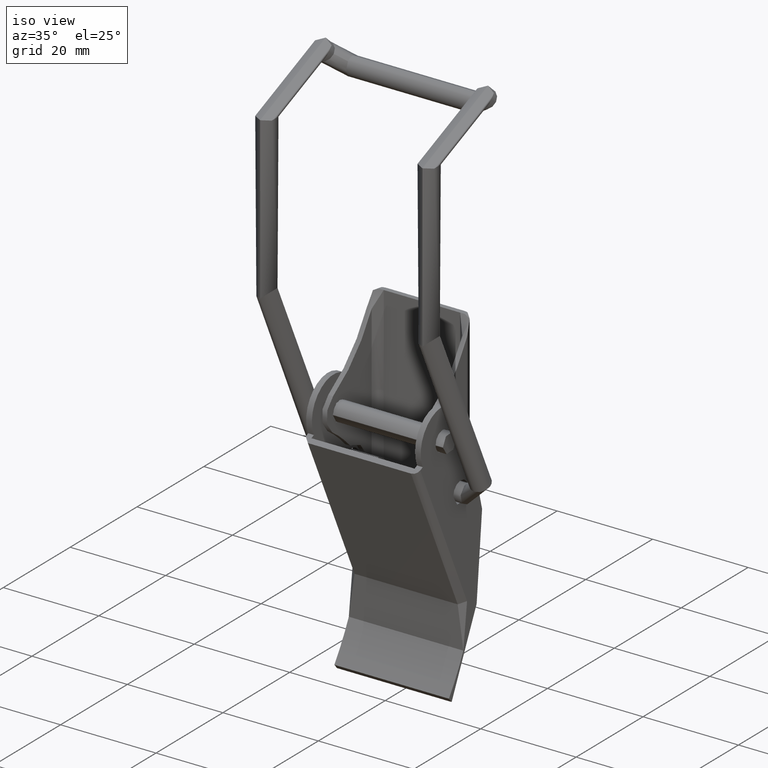
[diagram: clean part render]
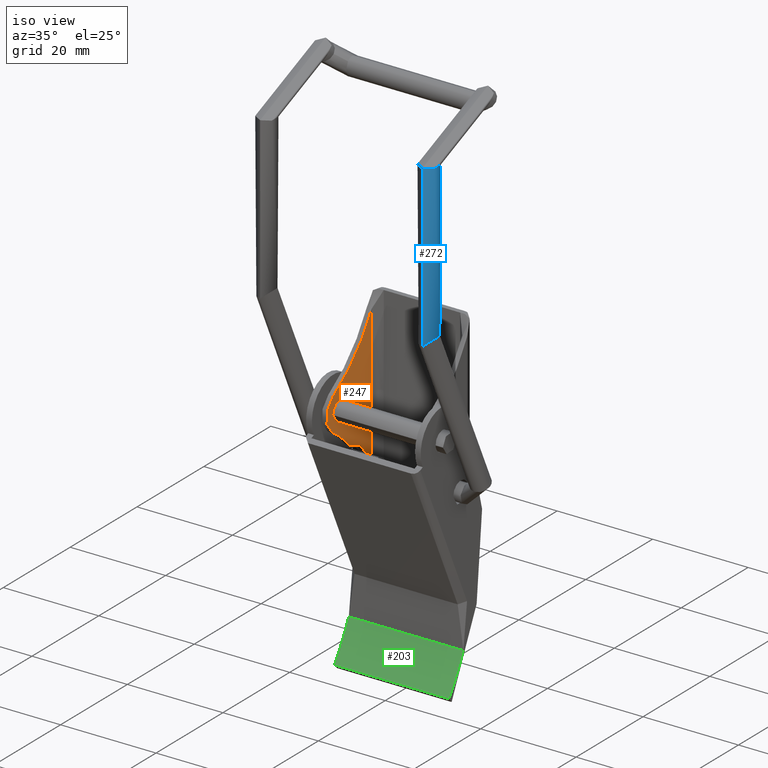
[diagram: same view with three faces highlighted in distinct colors, each labeled with its STEP entity id]
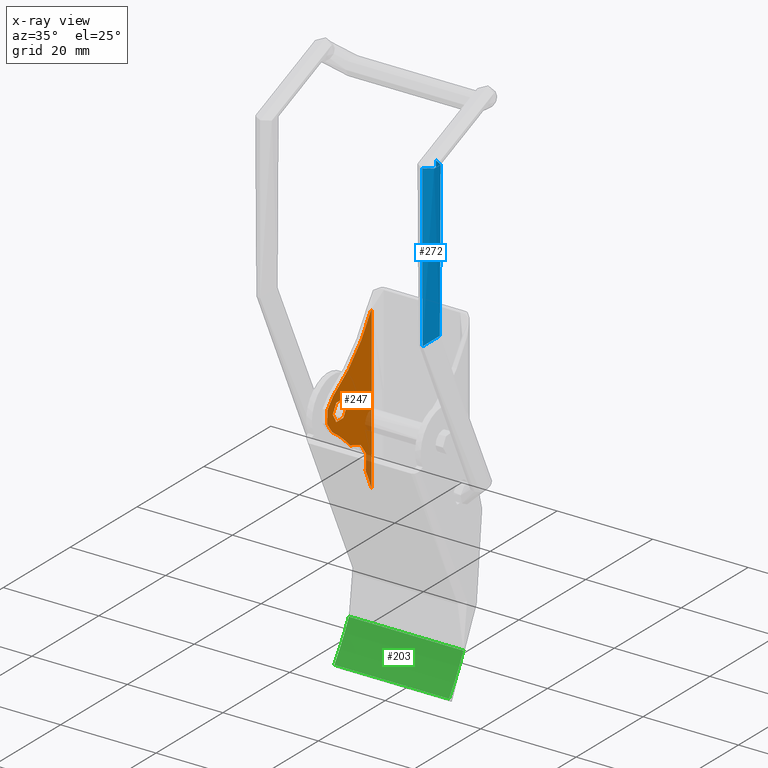
[diagram: x-ray of the same camera — body ghosted, the three highlighted faces saturated]
A machine part, iso view with three faces highlighted in distinct colors.
The next image is the same camera in x-ray (body ghosted, the three faces saturated) — at least one of them is partly hidden behind the body in this view.
Their STEP definitions:

[orange] entity #247 — the highlighted planar face has unit normal (-1, 0, 0).
#247=ADVANCED_FACE('',(#910,#911),#909,.F.);
#909=PLANE('',#1768);
#910=FACE_OUTER_BOUND('',#1769,.T.);
#911=FACE_BOUND('',#1770,.T.);
#1765=CARTESIAN_POINT('',(-1.90129845101E+01,1.00000000000E+00,9.25268388653E+00));
#1766=DIRECTION('',(0.00000000000E+00,-1.00000000000E+00,0.00000000000E+00));
#1767=DIRECTION('',(0.00000000000E+00,0.00000000000E+00,-1.00000000000E+00));
#1768=AXIS2_PLACEMENT_3D('',#1765,#1766,#1767);
#1769=EDGE_LOOP('',(#2554,#2555,#2556,#2557,#2558,#2559,#2560,#2561,#2562));
#1770=EDGE_LOOP('',(#2563,#2564));
#2554=ORIENTED_EDGE('',*,*,#2943,.T.);
#2555=ORIENTED_EDGE('',*,*,#2954,.T.);
#2556=ORIENTED_EDGE('',*,*,#2964,.F.);
#2557=ORIENTED_EDGE('',*,*,#2966,.T.);
#2558=ORIENTED_EDGE('',*,*,#2978,.F.);
#2559=ORIENTED_EDGE('',*,*,#2975,.T.);
#2560=ORIENTED_EDGE('',*,*,#2932,.F.);
#2561=ORIENTED_EDGE('',*,*,#2894,.T.);
#2562=ORIENTED_EDGE('',*,*,#2952,.F.);
#2563=ORIENTED_EDGE('',*,*,#2980,.F.);
#2564=ORIENTED_EDGE('',*,*,#2981,.F.);
#2894=EDGE_CURVE('',#3763,#3756,#3764,.T.);
#2932=EDGE_CURVE('',#3763,#4023,#4024,.T.);
#2943=EDGE_CURVE('',#4097,#4090,#4098,.T.);
#2952=EDGE_CURVE('',#4097,#3756,#4153,.T.);
#2954=EDGE_CURVE('',#4090,#4165,#4166,.T.);
#2964=EDGE_CURVE('',#4224,#4165,#4232,.T.);
#2966=EDGE_CURVE('',#4224,#4244,#4245,.T.);
#2975=EDGE_CURVE('',#4303,#4023,#4304,.T.);
#2978=EDGE_CURVE('',#4303,#4244,#4323,.T.);
#2980=EDGE_CURVE('',#4335,#4336,#4337,.T.);
#2981=EDGE_CURVE('',#4336,#4335,#4343,.T.);
#3756=VERTEX_POINT('',#5573);
#3763=VERTEX_POINT('',#5581);
#3764=LINE('',#5582,#5583);
#4023=VERTEX_POINT('',#5786);
#4024=CIRCLE('',#5790,3.00000000000E+01);
#4090=VERTEX_POINT('',#5857);
#4097=VERTEX_POINT('',#5861);
#4098=CIRCLE('',#5865,3.00000000000E+01);
#4153=LINE('',#5925,#5926);
#4165=VERTEX_POINT('',#5931);
#4166=CIRCLE('',#5935,4.00000000000E+00);
#4224=VERTEX_POINT('',#5968);
#4232=CIRCLE('',#5976,3.00000000000E+01);
#4244=VERTEX_POINT('',#5981);
#4245=CIRCLE('',#5985,1.00000000000E+00);
#4303=VERTEX_POINT('',#6021);
#4304=CIRCLE('',#6025,1.00000000000E+00);
#4323=CIRCLE('',#6037,4.50000000000E+00);
#4335=VERTEX_POINT('',#6042);
#4336=VERTEX_POINT('',#6043);
#4337=CIRCLE('',#6047,2.10000000000E+00);
#4343=CIRCLE('',#6051,2.10000000000E+00);
#5573=CARTESIAN_POINT('',(0.00000000000E+00,1.00000000000E+00,-9.50000000000E+00));
#5581=CARTESIAN_POINT('',(1.86312859580E+01,1.00000000000E+00,-9.50000000000E+00));
#5582=CARTESIAN_POINT('',(1.86312859580E+01,1.00000000000E+00,-9.50000000000E+00));
#5583=VECTOR('',#5584,1.86312859580E+01);
#5584=DIRECTION('',(-1.00000000000E+00,0.00000000000E+00,0.00000000000E+00));
#5786=CARTESIAN_POINT('',(1.46696021857E+01,1.00000000000E+00,-7.83354885156E+00));
#5787=CARTESIAN_POINT('',(2.82526303348E+01,1.00000000000E+00,1.89153080642E+01));
#5788=DIRECTION('',(-0.00000000000E+00,1.00000000000E+00,0.00000000000E+00));
#5789=DIRECTION('',(-0.00000000000E+00,-0.00000000000E+00,1.00000000000E+00));
#5790=AXIS2_PLACEMENT_3D('',#5787,#5788,#5789);
#5857=CARTESIAN_POINT('',(-3.45339496623E+00,1.00000000000E+00,2.01843087750E+00));
#5861=CARTESIAN_POINT('',(-1.55907781039E+01,1.00000000000E+00,-9.50000000000E+00));
#5862=CARTESIAN_POINT('',(-2.93538572129E+01,1.00000000000E+00,1.71566624587E+01));
#5863=DIRECTION('',(0.00000000000E+00,-1.00000000000E+00,0.00000000000E+00));
#5864=DIRECTION('',(-0.00000000000E+00,-0.00000000000E+00,-1.00000000000E+00));
#5865=AXIS2_PLACEMENT_3D('',#5862,#5863,#5864);
#5925=CARTESIAN_POINT('',(-1.55907781039E+01,1.00000000000E+00,-9.50000000000E+00));
#5926=VECTOR('',#5927,1.55907781039E+01);
#5927=DIRECTION('',(1.00000000000E+00,0.00000000000E+00,0.00000000000E+00));
#5931=CARTESIAN_POINT('',(3.32383886292E+00,1.00000000000E+00,2.22533036049E+00));
#5932=CARTESIAN_POINT('',(0.00000000000E+00,1.00000000000E+00,-2.84217094304E-14));
#5933=DIRECTION('',(0.00000000000E+00,1.00000000000E+00,-0.00000000000E+00));
#5934=DIRECTION('',(8.30959715731E-01,0.00000000000E+00,5.56332590123E-01));
#5935=AXIS2_PLACEMENT_3D('',#5932,#5933,#5934);
#5968=CARTESIAN_POINT('',(7.68768261945E+00,1.00000000000E+00,-2.92691996922E+00));
#5973=CARTESIAN_POINT('',(2.82526303348E+01,1.00000000000E+00,1.89153080642E+01));
#5974=DIRECTION('',(-0.00000000000E+00,1.00000000000E+00,0.00000000000E+00));
#5975=DIRECTION('',(-0.00000000000E+00,-0.00000000000E+00,1.00000000000E+00));
#5976=AXIS2_PLACEMENT_3D('',#5973,#5974,#5975);
#5981=CARTESIAN_POINT('',(8.00178720549E+00,1.00000000000E+00,-3.62681346664E+00));
#5982=CARTESIAN_POINT('',(7.00218436227E+00,1.00000000000E+00,-3.65499423700E+00));
#5983=DIRECTION('',(-0.00000000000E+00,1.00000000000E+00,0.00000000000E+00));
#5984=DIRECTION('',(-0.00000000000E+00,-0.00000000000E+00,1.00000000000E+00));
#5985=AXIS2_PLACEMENT_3D('',#5982,#5983,#5984);
#6021=CARTESIAN_POINT('',(1.39046828387E+01,1.00000000000E+00,-7.77514515807E+00));
#6022=CARTESIAN_POINT('',(1.42168345807E+01,1.00000000000E+00,-8.72517741542E+00));
#6023=DIRECTION('',(0.00000000000E+00,1.00000000000E+00,-0.00000000000E+00));
#6024=DIRECTION('',(4.52767604973E-01,0.00000000000E+00,8.91628563858E-01));
#6025=AXIS2_PLACEMENT_3D('',#6022,#6023,#6024);
#6034=CARTESIAN_POINT('',(1.25000000000E+01,1.00000000000E+00,-3.50000000000E+00));
#6035=DIRECTION('',(-0.00000000000E+00,1.00000000000E+00,0.00000000000E+00));
#6036=DIRECTION('',(-0.00000000000E+00,-0.00000000000E+00,1.00000000000E+00));
#6037=AXIS2_PLACEMENT_3D('',#6034,#6035,#6036);
#6042=CARTESIAN_POINT('',(5.18104078158E-16,1.00000000000E+00,2.10000000000E+00));
#6043=CARTESIAN_POINT('',(0.00000000000E+00,1.00000000000E+00,-2.10000000000E+00));
#6044=CARTESIAN_POINT('',(0.00000000000E+00,1.00000000000E+00,-2.84217094304E-14));
#6045=DIRECTION('',(0.00000000000E+00,1.00000000000E+00,0.00000000000E+00));
#6046=DIRECTION('',(-1.22460635382E-16,0.00000000000E+00,-1.00000000000E+00));
#6047=AXIS2_PLACEMENT_3D('',#6044,#6045,#6046);
#6048=CARTESIAN_POINT('',(0.00000000000E+00,1.00000000000E+00,-2.84217094304E-14));
#6049=DIRECTION('',(0.00000000000E+00,1.00000000000E+00,0.00000000000E+00));
#6050=DIRECTION('',(-1.22460635382E-16,0.00000000000E+00,-1.00000000000E+00));
#6051=AXIS2_PLACEMENT_3D('',#6048,#6049,#6050);

[blue] entity #272 — the highlighted cylindrical surface (edge-blend (fillet) strip) has radius 2 mm, axis along (0, 0.0011, -1).
#272=ADVANCED_FACE('',(#1163),#1162,.T.);
#1162=CYLINDRICAL_SURFACE('',#1970,2.00000000000E+00);
#1163=FACE_OUTER_BOUND('',#1971,.T.);
#1967=CARTESIAN_POINT('',(1.70000000000E+01,-1.99434116207E+01,-1.42177094166E+05));
#1968=DIRECTION('',(-0.00000000000E+00,3.98013334088E-07,-1.00000000000E+00));
#1969=DIRECTION('',(3.90055799479E-12,-1.00000000000E+00,-3.98013334088E-07));
#1970=AXIS2_PLACEMENT_3D('',#1967,#1968,#1969);
#1971=EDGE_LOOP('',(#2701,#2702,#2703,#2704,#2705));
#2701=ORIENTED_EDGE('',*,*,#3039,.T.);
#2702=ORIENTED_EDGE('',*,*,#3036,.T.);
#2703=ORIENTED_EDGE('',*,*,#3031,.F.);
#2704=ORIENTED_EDGE('',*,*,#3035,.F.);
#2705=ORIENTED_EDGE('',*,*,#3038,.F.);
#3031=EDGE_CURVE('',#4670,#4677,#4678,.T.);
#3035=EDGE_CURVE('',#4697,#4670,#4704,.T.);
#3036=EDGE_CURVE('',#4710,#4677,#4711,.T.);
#3038=EDGE_CURVE('',#4717,#4697,#4724,.T.);
#3039=EDGE_CURVE('',#4717,#4710,#4730,.T.);
#4670=VERTEX_POINT('',#6256);
#4677=VERTEX_POINT('',#6259);
#4678=(BOUNDED_CURVE() B_SPLINE_CURVE(2,(#6260,#6261,#6262,#6263,#6264),.UNSPECIFIED.,.F.,.F.) B_SPLINE_CURVE_WITH_KNOTS((3,2,3),(-2.60582204435E+00,-1.57079632679E+00,-0.00000000000E+00),.UNSPECIFIED.) CURVE() GEOMETRIC_REPRESENTATION_ITEM() RATIONAL_B_SPLINE_CURVE((8.68347356092E-01,8.07007433873E-01,1.00000000000E+00,7.07106781187E-01,1.00000000000E+00)) REPRESENTATION_ITEM('') );
#4697=VERTEX_POINT('',#6271);
#4704=(BOUNDED_CURVE() B_SPLINE_CURVE(2,(#6277,#6278,#6279),.UNSPECIFIED.,.F.,.F.) B_SPLINE_CURVE_WITH_KNOTS((3,3),(-3.13733139102E+00,-2.60582204435E+00),.UNSPECIFIED.) CURVE() GEOMETRIC_REPRESENTATION_ITEM() RATIONAL_B_SPLINE_CURVE((1.00000000000E+00,9.00099347313E-01,8.68347356092E-01)) REPRESENTATION_ITEM('') );
#4710=VERTEX_POINT('',#6280);
#4711=(BOUNDED_CURVE() B_SPLINE_CURVE(1,(#6281,#6282),.UNSPECIFIED.,.F.,.F.) B_SPLINE_CURVE_WITH_KNOTS((2,2),(8.33333335810E-02,9.16666666255E-01),.UNSPECIFIED.) CURVE() GEOMETRIC_REPRESENTATION_ITEM() RATIONAL_B_SPLINE_CURVE((1.00000000000E+00,1.00000000000E+00)) REPRESENTATION_ITEM('') );
#4717=VERTEX_POINT('',#6283);
#4724=(BOUNDED_CURVE() B_SPLINE_CURVE(1,(#6288,#6289),.UNSPECIFIED.,.F.,.F.) B_SPLINE_CURVE_WITH_KNOTS((2,2),(8.33333333339E-02,8.94894728720E-01),.UNSPECIFIED.) CURVE() GEOMETRIC_REPRESENTATION_ITEM() RATIONAL_B_SPLINE_CURVE((7.50000000000E-01,7.50000000000E-01)) REPRESENTATION_ITEM('') );
#4730=CIRCLE('',#6293,2.00000000000E+00);
#6256=CARTESIAN_POINT('',(1.80000022169E+01,-1.82679361986E+01,-3.58625025752E+01));
#6259=CARTESIAN_POINT('',(1.70000000000E+01,-2.19999853989E+01,-3.66850221530E+01));
#6260=CARTESIAN_POINT('',(1.80000022169E+01,-1.82679361986E+01,-3.58625025752E+01));
#6261=CARTESIAN_POINT('',(1.90000000000E+01,-1.88452868438E+01,-3.59897469344E+01));
#6262=CARTESIAN_POINT('',(1.90000000000E+01,-1.99999855743E+01,-3.62442350886E+01));
#6263=CARTESIAN_POINT('',(1.90000000000E+01,-2.19999853989E+01,-3.66850221530E+01));
#6264=CARTESIAN_POINT('',(1.70000000000E+01,-2.19999853989E+01,-3.66850221530E+01));
#6271=CARTESIAN_POINT('',(1.70000000000E+01,-1.79999857498E+01,-3.58033436498E+01));
#6277=CARTESIAN_POINT('',(1.70000000000E+01,-1.79999857498E+01,-3.58034480241E+01));
#6278=CARTESIAN_POINT('',(1.75358997567E+01,-1.79999857498E+01,-3.58034480241E+01));
#6279=CARTESIAN_POINT('',(1.80000022169E+01,-1.82679361986E+01,-3.58625025752E+01));
#6280=CARTESIAN_POINT('',(1.70000000000E+01,-2.19999988036E+01,-2.93833588643E+00));
#6281=CARTESIAN_POINT('',(1.70000000000E+01,-2.19999988305E+01,-2.93833589643E+00));
#6282=CARTESIAN_POINT('',(1.70000000000E+01,-2.19999853989E+01,-3.66850221364E+01));
#6283=CARTESIAN_POINT('',(1.70000000000E+01,-1.79999988036E+01,-2.93833429437E+00));
#6288=CARTESIAN_POINT('',(1.70000000000E+01,-1.79999988305E+01,-2.93833429437E+00));
#6289=CARTESIAN_POINT('',(1.70000000000E+01,-1.79999857498E+01,-3.58033436498E+01));
#6290=CARTESIAN_POINT('',(1.70000000000E+01,-1.99999988036E+01,-2.93833509040E+00));
#6291=DIRECTION('',(-5.87747175411E-39,3.98013334096E-07,-1.00000000000E+00));
#6292=DIRECTION('',(-1.22460635382E-16,1.00000000000E+00,3.98013334096E-07));
#6293=AXIS2_PLACEMENT_3D('',#6290,#6291,#6292);

[green] entity #203 — the highlighted cylindrical surface (partial cylindrical patch) has radius 49 mm, axis along (1, 0, -0).
#203=ADVANCED_FACE('',(#468),#467,.F.);
#467=CYLINDRICAL_SURFACE('',#1476,4.90000000000E+01);
#468=FACE_OUTER_BOUND('',#1477,.T.);
#1473=CARTESIAN_POINT('',(1.26146923125E+01,-3.98985197294E+01,-1.78599630000E+01));
#1474=DIRECTION('',(1.00000000000E+00,1.64300049733E-15,-1.27670921490E-15));
#1475=DIRECTION('',(2.05862113071E-15,-8.70445927485E-01,4.92264042282E-01));
#1476=AXIS2_PLACEMENT_3D('',#1473,#1474,#1475);
#1477=EDGE_LOOP('',(#2332,#2333,#2334,#2335));
#2332=ORIENTED_EDGE('',*,*,#2850,.F.);
#2333=ORIENTED_EDGE('',*,*,#2834,.T.);
#2334=ORIENTED_EDGE('',*,*,#2794,.T.);
#2335=ORIENTED_EDGE('',*,*,#2864,.F.);
#2794=EDGE_CURVE('',#3093,#3086,#3094,.T.);
#2834=EDGE_CURVE('',#3366,#3093,#3367,.T.);
#2850=EDGE_CURVE('',#3366,#3314,#3474,.T.);
#2864=EDGE_CURVE('',#3314,#3086,#3566,.T.);
#3086=VERTEX_POINT('',#4991);
#3093=VERTEX_POINT('',#5000);
#3094=CIRCLE('',#5004,4.90000000000E+01);
#3314=VERTEX_POINT('',#5179);
#3366=VERTEX_POINT('',#5254);
#3367=(BOUNDED_CURVE() B_SPLINE_CURVE(3,(#5255,#5256,#5257,#5258,#5259,#5260,#5261,#5262,#5263,#5264,#5265,#5266,#5267,#5268,#5269,#5270,#5271,#5272,#5273,#5274,#5275,#5276,#5277,#5278,#5279,#5280,#5281,#5282,#5283,#5284,#5285,#5286,#5287),.UNSPECIFIED.,.F.,.F.) B_SPLINE_CURVE_WITH_KNOTS((4,2,2,2,2,2,2,2,2,1,2,2,2,2,2,2,4),(0.00000000000E+00,1.25000000000E-01,2.50000000000E-01,3.12500000000E-01,3.43750000000E-01,3.59375000000E-01,3.75000000000E-01,5.00000000000E-01,5.62500000000E-01,5.93750000000E-01,6.09375000000E-01,6.25000000000E-01,7.50000000000E-01,8.75000000000E-01,9.06250000000E-01,9.37500000000E-01,1.00000000000E+00),.UNSPECIFIED.) CURVE() GEOMETRIC_REPRESENTATION_ITEM() RATIONAL_B_SPLINE_CURVE((1.00000000000E+00,1.00000000000E+00,1.00000000000E+00,1.00000000000E+00,1.00000000000E+00,1.00000000000E+00,1.00000000000E+00,1.00000000000E+00,1.00000000000E+00,1.00000000000E+00,1.00000000000E+00,1.00000000000E+00,1.00000000000E+00,1.00000000000E+00,1.00000000000E+00,1.00000000000E+00,1.00000000000E+00,1.00000000000E+00,1.00000000000E+00,1.00000000000E+00,1.00000000000E+00,1.00000000000E+00,1.00000000000E+00,1.00000000000E+00,1.00000000000E+00,1.00000000000E+00,1.00000000000E+00,1.00000000000E+00,1.00000000000E+00,1.00000000000E+00,1.00000000000E+00,1.00000000000E+00,1.00000000000E+00)) REPRESENTATION_ITEM('') );
#3474=CIRCLE('',#5396,4.90000000000E+01);
#3566=LINE('',#5466,#5467);
#4991=CARTESIAN_POINT('',(1.19997000000E+01,2.44940279043E+00,-4.25105909485E+01));
#5000=CARTESIAN_POINT('',(1.19997000000E+01,-2.52516078479E+00,-4.95495834016E+01));
#5001=CARTESIAN_POINT('',(1.19997000000E+01,-3.98985197294E+01,-1.78599630000E+01));
#5002=DIRECTION('',(1.00000000000E+00,6.12269377993E-16,7.22083854099E-16));
#5003=DIRECTION('',(-0.00000000000E+00,-7.62721611114E-01,6.46726946972E-01));
#5004=AXIS2_PLACEMENT_3D('',#5001,#5002,#5003);
#5179=CARTESIAN_POINT('',(-1.20000000000E+01,2.44940279043E+00,-4.25105909485E+01));
#5254=CARTESIAN_POINT('',(-1.20000000000E+01,-2.52504092211E+00,-4.95494420402E+01));
#5255=CARTESIAN_POINT('',(-1.20000000000E+01,-2.52504092211E+00,-4.95494420402E+01));
#5256=CARTESIAN_POINT('',(-1.10938960539E+01,-2.88707195031E+00,-4.99764089507E+01));
#5257=CARTESIAN_POINT('',(-1.01654042803E+01,-3.22013713586E+00,-5.03544742111E+01));
#5258=CARTESIAN_POINT('',(-8.26021900271E+00,-3.81479715447E+00,-5.10135747740E+01));
#5259=CARTESIAN_POINT('',(-7.28352960803E+00,-4.07640231300E+00,-5.12946145109E+01));
#5260=CARTESIAN_POINT('',(-5.77764631322E+00,-4.40231817156E+00,-5.16393158569E+01));
#5261=CARTESIAN_POINT('',(-5.26885452383E+00,-4.49984514517E+00,-5.17413579836E+01));
#5262=CARTESIAN_POINT('',(-4.49461662944E+00,-4.62758035929E+00,-5.18741454544E+01));
#5263=CARTESIAN_POINT('',(-4.23469405261E+00,-4.66706427522E+00,-5.19150251295E+01));
#5264=CARTESIAN_POINT('',(-3.84192985547E+00,-4.72139470544E+00,-5.19711129742E+01));
#5265=CARTESIAN_POINT('',(-3.71067391931E+00,-4.73866667101E+00,-5.19889138289E+01));
#5266=CARTESIAN_POINT('',(-3.44835243925E+00,-4.77140449195E+00,-5.20226081971E+01));
#5267=CARTESIAN_POINT('',(-3.31716136110E+00,-4.78688794995E+00,-5.20385198907E+01));
#5268=CARTESIAN_POINT('',(-2.13616841612E+00,-4.91823022276E+00,-5.21733326447E+01));
#5269=CARTESIAN_POINT('',(-1.08445468331E+00,-4.97790467647E+00,-5.22336542035E+01));
#5270=CARTESIAN_POINT('',(4.96056521835E-01,-4.97961095321E+00,-5.22353875143E+01));
#5271=CARTESIAN_POINT('',(1.02338382501E+00,-4.96556944210E+00,-5.22211425520E+01));
#5272=CARTESIAN_POINT('',(1.81511452366E+00,-4.92254369537E+00,-5.21773276929E+01));
#5273=CARTESIAN_POINT('',(2.21116481784E+00,-4.89554238076E+00,-5.21498055212E+01));
#5274=CARTESIAN_POINT('',(2.60749346165E+00,-4.86032074566E+00,-5.21137940239E+01));
#5275=CARTESIAN_POINT('',(2.87177452705E+00,-4.83501569868E+00,-5.20878903828E+01));
#5276=CARTESIAN_POINT('',(3.00406555470E+00,-4.82143682041E+00,-5.20739759498E+01));
#5277=CARTESIAN_POINT('',(4.19039221541E+00,-4.69155560112E+00,-5.19407059331E+01));
#5278=CARTESIAN_POINT('',(5.22010407072E+00,-4.52120412155E+00,-5.17648987391E+01));
#5279=CARTESIAN_POINT('',(7.23574268913E+00,-4.08843767210E+00,-5.13074913114E+01));
#5280=CARTESIAN_POINT('',(8.22167075088E+00,-3.82604330675E+00,-5.10258774875E+01));
#5281=CARTESIAN_POINT('',(9.42915168481E+00,-3.45012537369E+00,-5.06094231304E+01));
#5282=CARTESIAN_POINT('',(9.66948190567E+00,-3.37250442366E+00,-5.05228553714E+01));
#5283=CARTESIAN_POINT('',(1.01457540940E+01,-3.21333708631E+00,-5.03439853283E+01));
#5284=CARTESIAN_POINT('',(1.03819396892E+01,-3.13171761560E+00,-5.02516026763E+01));
#5285=CARTESIAN_POINT('',(1.10848227864E+01,-2.88114582478E+00,-4.99656986802E+01));
#5286=CARTESIAN_POINT('',(1.15458549940E+01,-2.70648894027E+00,-4.97634339355E+01));
#5287=CARTESIAN_POINT('',(1.19997000000E+01,-2.52516078479E+00,-4.95495834016E+01));
#5393=CARTESIAN_POINT('',(-1.20000000000E+01,-3.98985197294E+01,-1.78599630000E+01));
#5394=DIRECTION('',(1.00000000000E+00,-7.77258235118E-15,5.23944447732E-15));
#5395=DIRECTION('',(-9.31681036175E-15,-7.62724057291E-01,6.46724062046E-01));
#5396=AXIS2_PLACEMENT_3D('',#5393,#5394,#5395);
#5466=CARTESIAN_POINT('',(-1.20000000000E+01,2.44940279043E+00,-4.25105909485E+01));
#5467=VECTOR('',#5468,2.39997000000E+01);
#5468=DIRECTION('',(1.00000000000E+00,0.00000000000E+00,0.00000000000E+00));